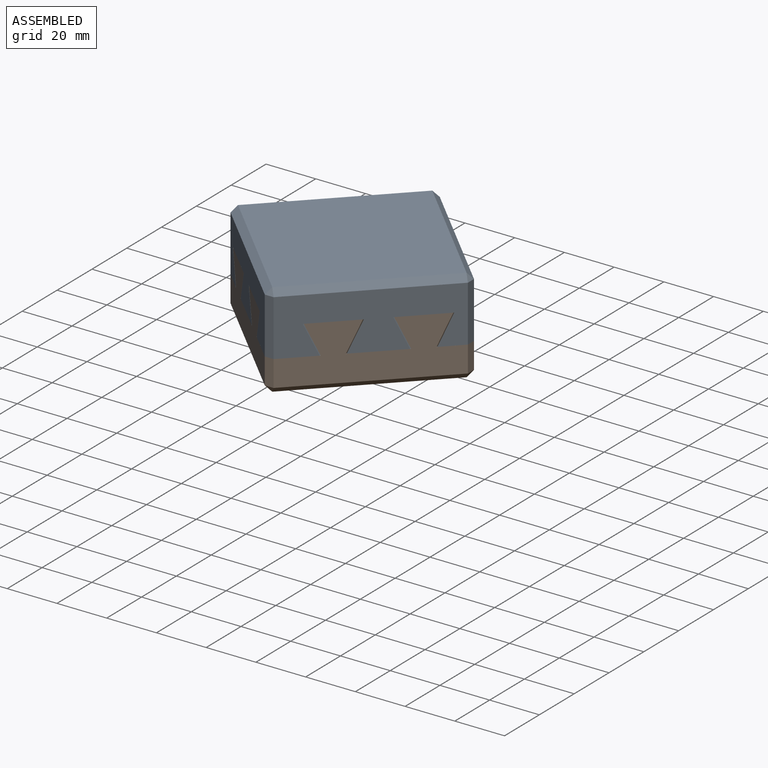
[diagram: assembled view]
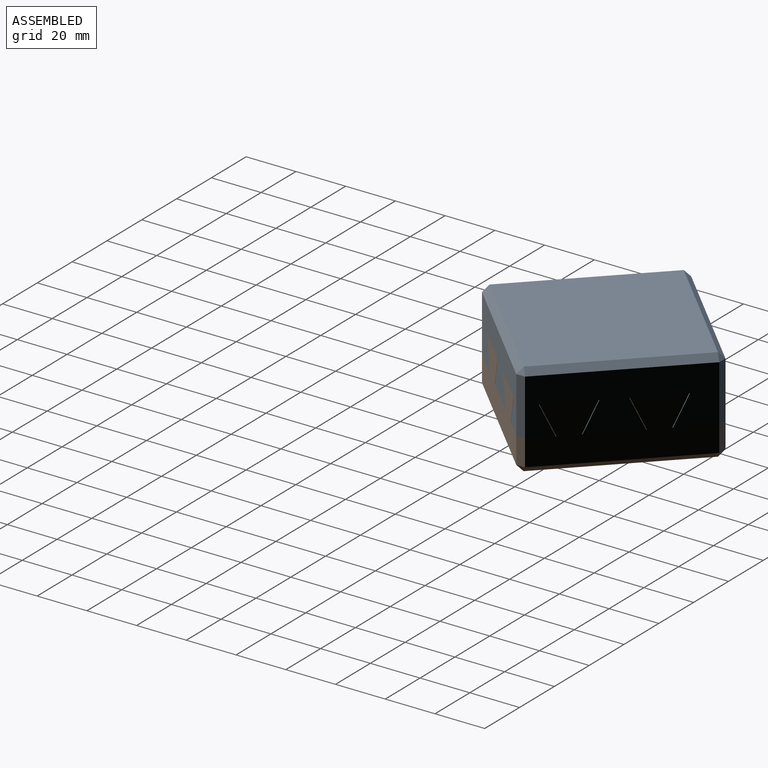
[diagram: assembled view, second angle]
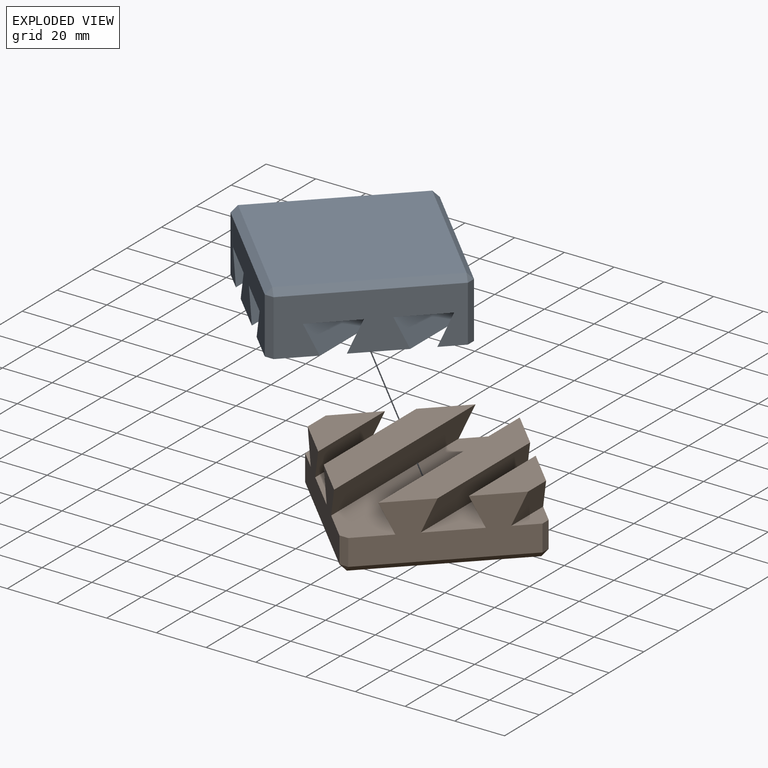
[diagram: exploded view]
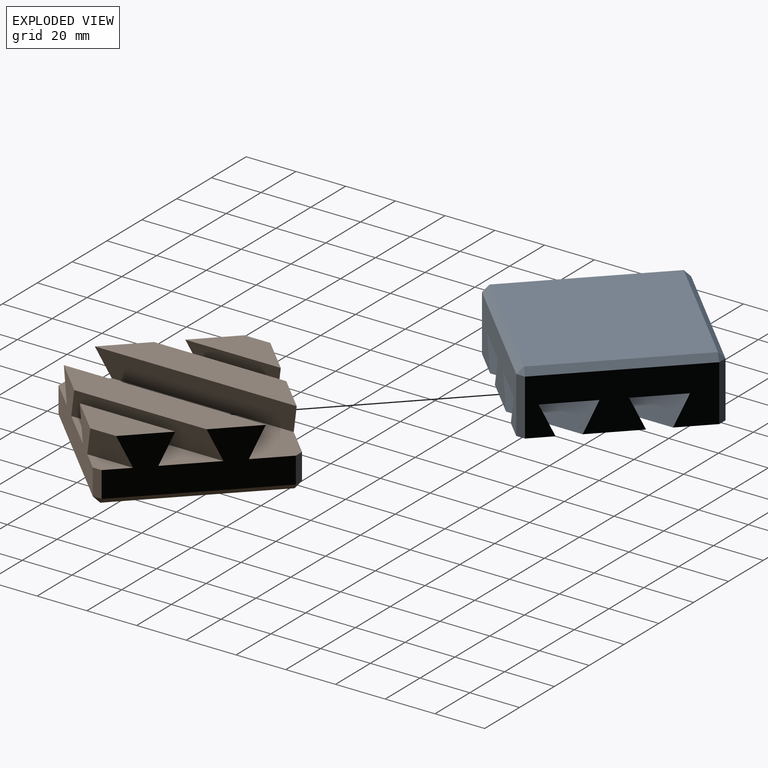
[diagram: exploded view, second angle]
ASSEMBLY  parts=2 mates=3
PART A: 34 faces, bbox 95.5x95.5x25 mm
  f0: plane 45.96x45.96mm, normal (0.71,-0.71,0), area 1109.5mm2, adj f2,f3,f4,f10,f11,f12,f13,f14
  f1: plane 45.96x45.96mm, normal (0.71,0.71,0), area 1109.5mm2, adj f2,f3,f4,f10,f11,f12,f13,f14
  f2: plane 18x7.23mm, normal (0,0,1), area 77.9mm2, adj f0,f1,f13,f24
  f3: plane 60.8x15mm, normal (0,0,1), area 687mm2, adj f0,f1,f10,f14
  f4: plane 95.46x25.4mm, normal (0,0,1), area 2185.3mm2, adj f0,f1,f6,f7,f11,f21,f22,f33
  f5: plane 60.8x15mm, normal (0,0,1), area 687mm2, adj f6,f7,f16,f19
  f6: plane 45.96x45.96mm, normal (-0.71,0.71,0), area 1109.5mm2, adj f4,f5,f8,f16,f17,f18,f19,f20
  f7: plane 45.96x45.96mm, normal (-0.71,-0.71,0), area 1109.5mm2, adj f4,f5,f8,f16,f17,f18,f19,f20
  f8: plane 18x7.23mm, normal (0,0,1), area 77.9mm2, adj f6,f7,f17,f27
  f9: plane 91.92x91.92mm, normal (0,0,-1), area 4225mm2, adj f25,f26,f30,f31
  f10: plane 60.8x12mm, normal (-0.95,0,-0.32), area 718.5mm2, adj f0,f1,f3,f12
  f11: plane 81.6x12mm, normal (0.95,0,-0.32), area 981.6mm2, adj f0,f1,f4,f12
  f12: plane 81.6x14.4mm, normal (0,0,1), area 967.7mm2, adj f0,f1,f10,f11
  f13: plane 18x12mm, normal (-0.95,0,-0.32), area 177.1mm2, adj f0,f1,f2,f15
  f14: plane 38.8x12mm, normal (0.95,0,-0.32), area 440.2mm2, adj f0,f1,f3,f15
  f15: plane 38.8x14.4mm, normal (0,0,1), area 351.4mm2, adj f0,f1,f13,f14
  f16: plane 38.8x12mm, normal (-0.95,0,-0.32), area 440.2mm2, adj f5,f6,f7,f18
  f17: plane 18x12mm, normal (0.95,0,-0.32), area 177.1mm2, adj f6,f7,f8,f18
  f18: plane 38.8x14.4mm, normal (0,0,1), area 351.4mm2, adj f6,f7,f16,f17
  f19: plane 60.8x12mm, normal (0.95,0,-0.32), area 718.5mm2, adj f5,f6,f7,f20
  f20: plane 81.6x14.4mm, normal (0,0,1), area 967.7mm2, adj f6,f7,f19,f21
  f21: plane 81.6x12mm, normal (-0.95,0,-0.32), area 981.6mm2, adj f4,f6,f7,f20
  f22: plane 22.5x3.54mm, normal (0,1,0), area 79.5mm2, adj f1,f4,f6,f23
  f23: plane 3.54x2.5mm, normal (0,0.82,-0.58), area 5.4mm2, adj f22,f25,f26
  f24: plane 22.5x3.54mm, normal (1,0,0), area 79.5mm2, adj f0,f1,f2,f28
  f25: plane 47.73x47.73mm, normal (0.5,0.5,-0.71), area 229.8mm2, adj f1,f9,f23,f28
  f26: plane 47.73x47.73mm, normal (-0.5,0.5,-0.71), area 229.8mm2, adj f6,f9,f23,f29
  f27: plane 22.5x3.54mm, normal (-1,0,0), area 79.5mm2, adj f6,f7,f8,f29
  f28: plane 3.54x2.5mm, normal (0.82,0,-0.58), area 5.4mm2, adj f24,f25,f30
  f29: plane 3.54x2.5mm, normal (-0.82,0,-0.58), area 5.4mm2, adj f26,f27,f31
  f30: plane 47.73x47.73mm, normal (0.5,-0.5,-0.71), area 229.8mm2, adj f0,f9,f28,f32
  f31: plane 47.73x47.73mm, normal (-0.5,-0.5,-0.71), area 229.8mm2, adj f7,f9,f29,f32
  f32: plane 3.54x2.5mm, normal (0,-0.82,-0.58), area 5.4mm2, adj f30,f31,f33
  f33: plane 22.5x3.54mm, normal (0,-1,0), area 79.5mm2, adj f0,f4,f7,f32
PART B: 34 faces, bbox 95.5x95.5x25 mm
  f0: plane 45.96x45.96mm, normal (-0.71,0.71,0), area 1021.9mm2, adj f4,f6,f11,f12,f17,f18,f19,f20
  f1: plane 45.96x45.96mm, normal (-0.71,-0.71,0), area 1021.9mm2, adj f4,f6,f11,f12,f17,f18,f19,f20
  f2: plane 45.96x45.96mm, normal (0.71,-0.71,0), area 1021.9mm2, adj f5,f7,f9,f10,f12,f13,f14,f15
  f3: plane 45.96x45.96mm, normal (0.71,0.71,0), area 1021.9mm2, adj f5,f7,f9,f10,f12,f13,f14,f15
  f4: plane 38.4x14mm, normal (0,0,1), area 341.6mm2, adj f0,f1,f17,f21
  f5: plane 38.4x14mm, normal (0,0,1), area 341.6mm2, adj f2,f3,f9,f16
  f6: plane 81.2x14mm, normal (0,0,1), area 940.8mm2, adj f0,f1,f11,f19
  f7: plane 81.2x14mm, normal (0,0,1), area 940.8mm2, adj f2,f3,f13,f14
  f8: plane 91.92x91.92mm, normal (0,0,-1), area 4225mm2, adj f25,f26,f30,f31
  f9: plane 18.4x12mm, normal (0.95,0,-0.32), area 182.1mm2, adj f2,f3,f5,f10
  f10: plane 18.4x7.43mm, normal (0,0,1), area 81.5mm2, adj f2,f3,f9,f24
  f11: plane 81.2x12mm, normal (0.95,0,-0.32), area 976.5mm2, adj f0,f1,f6,f12
  f12: plane 95.46x25.8mm, normal (0,0,1), area 2214.6mm2, adj f0,f1,f2,f3,f11,f13,f22,f33
  f13: plane 81.2x12mm, normal (-0.95,0,-0.32), area 976.5mm2, adj f2,f3,f7,f12
  f14: plane 61.2x12mm, normal (0.95,0,-0.32), area 723.5mm2, adj f2,f3,f7,f15
  f15: plane 61.2x15.4mm, normal (0,0,1), area 705.3mm2, adj f2,f3,f14,f16
  f16: plane 38.4x12mm, normal (-0.95,0,-0.32), area 435.1mm2, adj f2,f3,f5,f15
  f17: plane 38.4x12mm, normal (0.95,0,-0.32), area 435.1mm2, adj f0,f1,f4,f18
  f18: plane 61.2x15.4mm, normal (0,0,1), area 705.3mm2, adj f0,f1,f17,f19
  f19: plane 61.2x12mm, normal (-0.95,0,-0.32), area 723.5mm2, adj f0,f1,f6,f18
  f20: plane 18.4x7.43mm, normal (0,0,1), area 81.5mm2, adj f0,f1,f21,f27
  f21: plane 18.4x12mm, normal (-0.95,0,-0.32), area 182.1mm2, adj f0,f1,f4,f20
  f22: plane 10.5x3.54mm, normal (0,1,0), area 37.1mm2, adj f0,f3,f12,f23
  f23: plane 3.54x2.5mm, normal (0,0.82,-0.58), area 5.4mm2, adj f22,f25,f26
  f24: plane 10.5x3.54mm, normal (1,0,0), area 37.1mm2, adj f2,f3,f10,f28
  f25: plane 47.73x47.73mm, normal (0.5,0.5,-0.71), area 229.8mm2, adj f3,f8,f23,f28
  f26: plane 47.73x47.73mm, normal (-0.5,0.5,-0.71), area 229.8mm2, adj f0,f8,f23,f29
  f27: plane 10.5x3.54mm, normal (-1,0,0), area 37.1mm2, adj f0,f1,f20,f29
  f28: plane 3.54x2.5mm, normal (0.82,0,-0.58), area 5.4mm2, adj f24,f25,f30
  f29: plane 3.54x2.5mm, normal (-0.82,0,-0.58), area 5.4mm2, adj f26,f27,f31
  f30: plane 47.73x47.73mm, normal (0.5,-0.5,-0.71), area 229.8mm2, adj f2,f8,f28,f32
  f31: plane 47.73x47.73mm, normal (-0.5,-0.5,-0.71), area 229.8mm2, adj f1,f8,f29,f32
  f32: plane 3.54x2.5mm, normal (0,-0.82,-0.58), area 5.4mm2, adj f30,f31,f33
  f33: plane 10.5x3.54mm, normal (0,-1,0), area 37.1mm2, adj f1,f2,f12,f32
PLACE A rot(axis=(1,0,0),180deg) t=(6.07,-1.92,11.87)mm
PLACE B t=(6.07,-1.92,-26.13)mm fixed
MATE planar A.f1 <-> B.f2  axis (0.71,-0.71,0) through (46.57,-10.92,-13.13)mm
MATE planar A.f6 <-> B.f1  axis (-0.71,-0.71,0) through (-18.09,-27.25,-0.46)mm
MATE planar B.f12 <-> A.f4  axis (0,0,1) through (18.97,34.68,-13.13)mm
